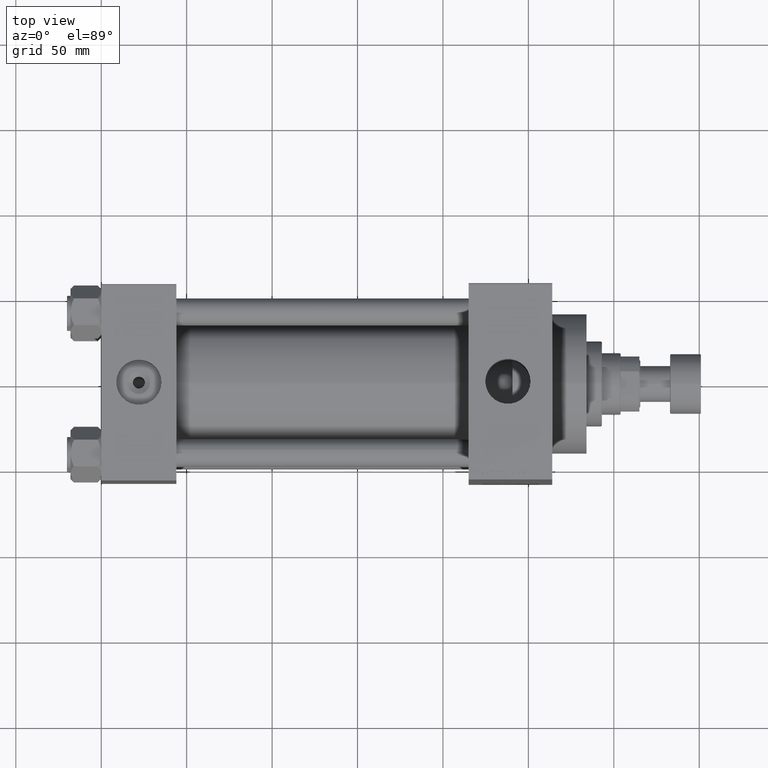
[diagram: clean part render]
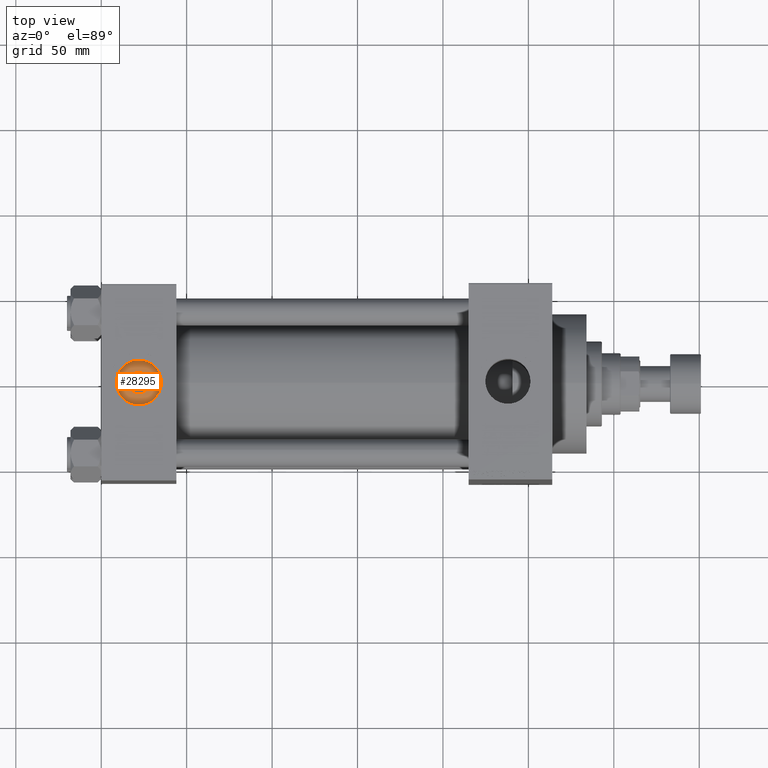
[diagram: same view with one face highlighted and labeled with its STEP entity id]
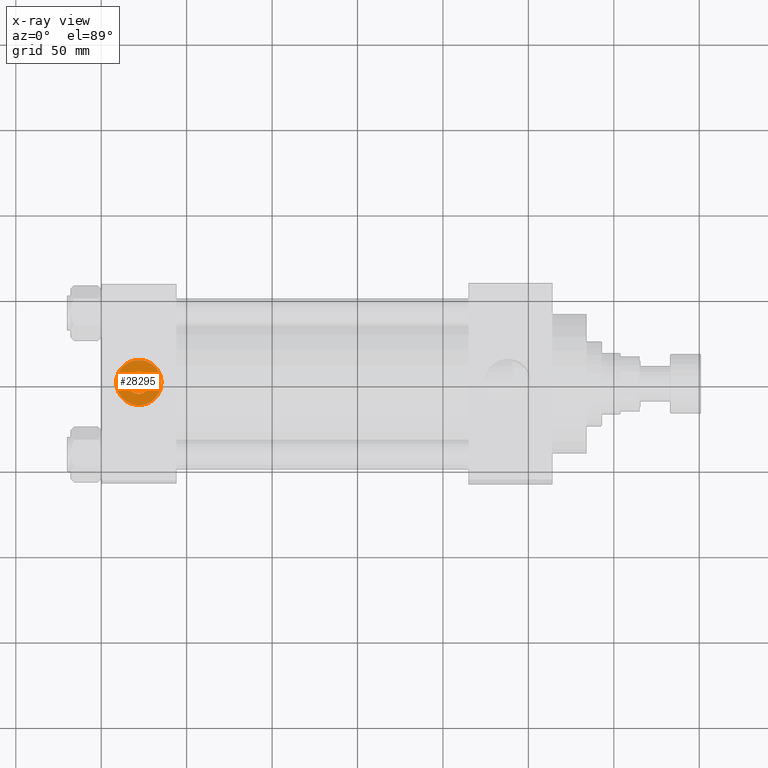
[diagram: x-ray of the same camera — body ghosted, the highlighted face saturated]
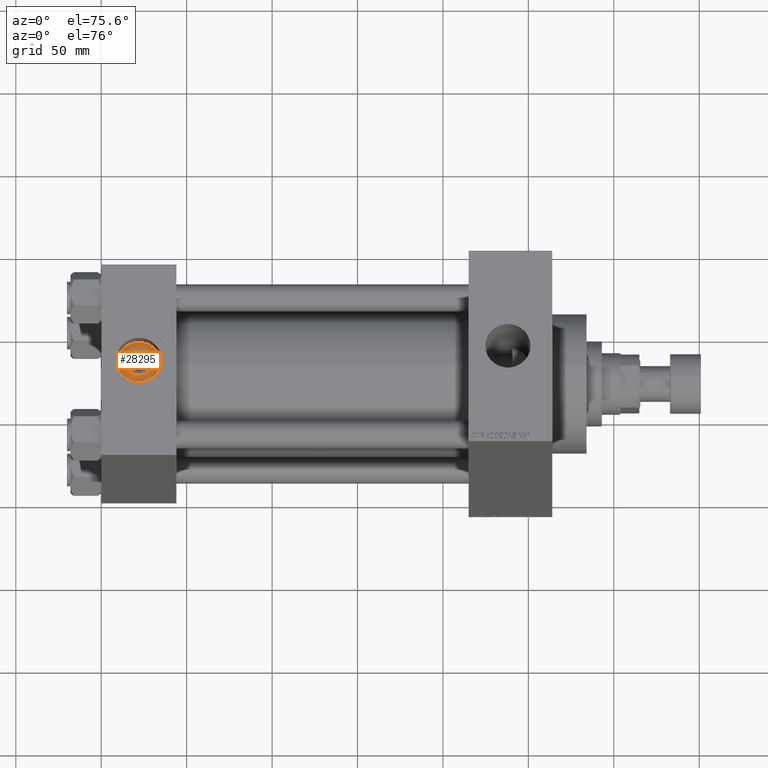
[diagram: same view with one face highlighted and labeled with its STEP entity id]
A machine part, top view. The second image highlights one B-rep face of the part: STEP entity #28295.
The next image is the same camera in x-ray: the body ghosted, the highlighted face saturated — about 0% of this face is hidden behind the body in this view.
A second angle (auxiliary view) of the same face is appended — the face is thin or edge-on in the first view.
In plain terms, the highlighted planar face has unit normal (0, 0, 1).
Its self-contained STEP definition (entity closure, byte-faithful):
#3319 = CARTESIAN_POINT ( 'NONE',  ( 22.00000000000000000, -8.673617379884035472E-15, 46.70000000000000284 ) ) ;
#3369 = DIRECTION ( 'NONE',  ( -0.000000000000000000, -0.000000000000000000, -1.000000000000000000 ) ) ;
#4450 = ORIENTED_EDGE ( 'NONE', *, *, #39407, .T. ) ;
#4625 = CIRCLE ( 'NONE', #31983, 6.640000000000034319 ) ;
#7173 = CARTESIAN_POINT ( 'NONE',  ( 35.21999999999999886, -8.673617379884035472E-15, 46.70000000000000284 ) ) ;
#7240 = DIRECTION ( 'NONE',  ( 1.000000000000000000, 0.000000000000000000, 0.000000000000000000 ) ) ;
#10212 = DIRECTION ( 'NONE',  ( 1.000000000000000000, 0.000000000000000000, 0.000000000000000000 ) ) ;
#10268 = EDGE_CURVE ( 'NONE', #41889, #14711, #38514, .T. ) ;
#10678 = DIRECTION ( 'NONE',  ( 0.000000000000000000, 0.000000000000000000, 1.000000000000000000 ) ) ;
#10916 = CARTESIAN_POINT ( 'NONE',  ( 8.779999999999994031, -7.054634311411234321E-15, 46.70000000000000284 ) ) ;
#11183 = AXIS2_PLACEMENT_3D ( 'NONE', #3319, #10678, #7240 ) ;
#11852 = ORIENTED_EDGE ( 'NONE', *, *, #21808, .T. ) ;
#11972 = ORIENTED_EDGE ( 'NONE', *, *, #10268, .T. ) ;
#12601 = CIRCLE ( 'NONE', #43841, 6.640000000000034319 ) ;
#12930 = CARTESIAN_POINT ( 'NONE',  ( 22.00000000000000000, -8.673617379884035472E-15, 46.70000000000000284 ) ) ;
#14711 = VERTEX_POINT ( 'NONE', #7173 ) ;
#15520 = EDGE_LOOP ( 'NONE', ( #11852, #11972 ) ) ;
#17310 = DIRECTION ( 'NONE',  ( -0.000000000000000000, -0.000000000000000000, -1.000000000000000000 ) ) ;
#18171 = PLANE ( 'NONE',  #29555 ) ;
#18646 = CARTESIAN_POINT ( 'NONE',  ( 22.00000000000000000, -8.673617379884035472E-15, 46.70000000000000284 ) ) ;
#19025 = DIRECTION ( 'NONE',  ( 1.000000000000000000, 0.000000000000000000, 0.000000000000000000 ) ) ;
#20487 = VERTEX_POINT ( 'NONE', #35267 ) ;
#20843 = ORIENTED_EDGE ( 'NONE', *, *, #35489, .T. ) ;
#21808 = EDGE_CURVE ( 'NONE', #14711, #41889, #37843, .T. ) ;
#27502 = EDGE_LOOP ( 'NONE', ( #4450, #20843 ) ) ;
#27605 = DIRECTION ( 'NONE',  ( 0.000000000000000000, 0.000000000000000000, 1.000000000000000000 ) ) ;
#27777 = AXIS2_PLACEMENT_3D ( 'NONE', #42239, #27605, #19025 ) ;
#28295 = ADVANCED_FACE ( 'NONE', ( #36740, #41116 ), #18171, .T. ) ;
#29555 = AXIS2_PLACEMENT_3D ( 'NONE', #18646, #29909, #33559 ) ;
#29909 = DIRECTION ( 'NONE',  ( 0.000000000000000000, 0.000000000000000000, 1.000000000000000000 ) ) ;
#31983 = AXIS2_PLACEMENT_3D ( 'NONE', #36872, #3369, #33218 ) ;
#33218 = DIRECTION ( 'NONE',  ( 1.000000000000000000, 0.000000000000000000, 0.000000000000000000 ) ) ;
#33559 = DIRECTION ( 'NONE',  ( 1.000000000000000000, 0.000000000000000000, -0.000000000000000000 ) ) ;
#35267 = CARTESIAN_POINT ( 'NONE',  ( 28.64000000000003254, -8.673617379884035472E-15, 46.70000000000000284 ) ) ;
#35489 = EDGE_CURVE ( 'NONE', #45126, #20487, #4625, .T. ) ;
#36740 = FACE_BOUND ( 'NONE', #27502, .T. ) ;
#36872 = CARTESIAN_POINT ( 'NONE',  ( 22.00000000000000000, -8.673617379884035472E-15, 46.70000000000000284 ) ) ;
#37843 = CIRCLE ( 'NONE', #27777, 13.22000000000000242 ) ;
#38514 = CIRCLE ( 'NONE', #11183, 13.22000000000000242 ) ;
#39407 = EDGE_CURVE ( 'NONE', #20487, #45126, #12601, .T. ) ;
#41116 = FACE_OUTER_BOUND ( 'NONE', #15520, .T. ) ;
#41889 = VERTEX_POINT ( 'NONE', #10916 ) ;
#42239 = CARTESIAN_POINT ( 'NONE',  ( 22.00000000000000000, -8.673617379884035472E-15, 46.70000000000000284 ) ) ;
#43841 = AXIS2_PLACEMENT_3D ( 'NONE', #12930, #17310, #10212 ) ;
#45126 = VERTEX_POINT ( 'NONE', #47802 ) ;
#47802 = CARTESIAN_POINT ( 'NONE',  ( 15.35999999999996390, -7.860451905250189418E-15, 46.70000000000000284 ) ) ;